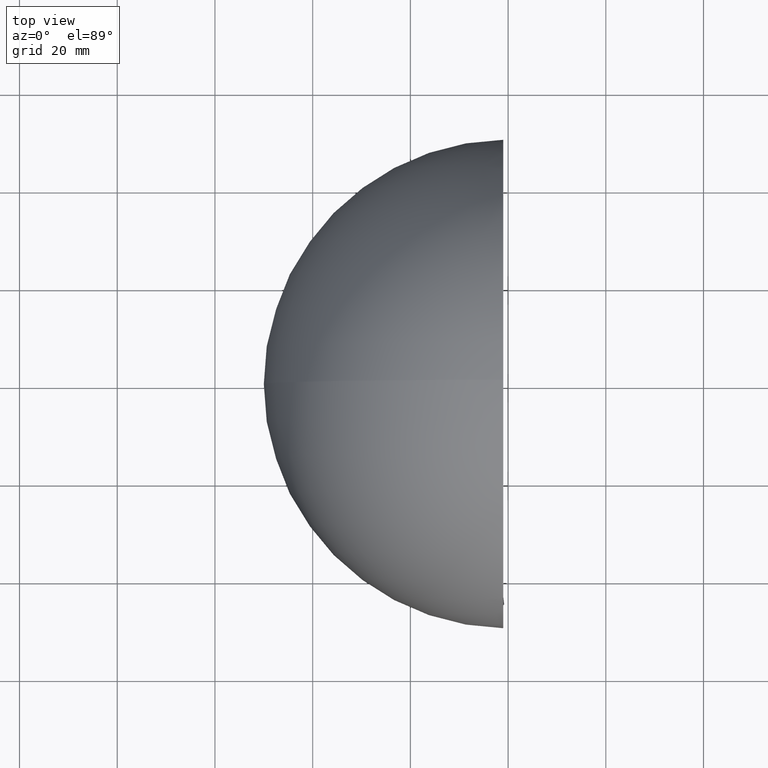
[diagram: clean part render]
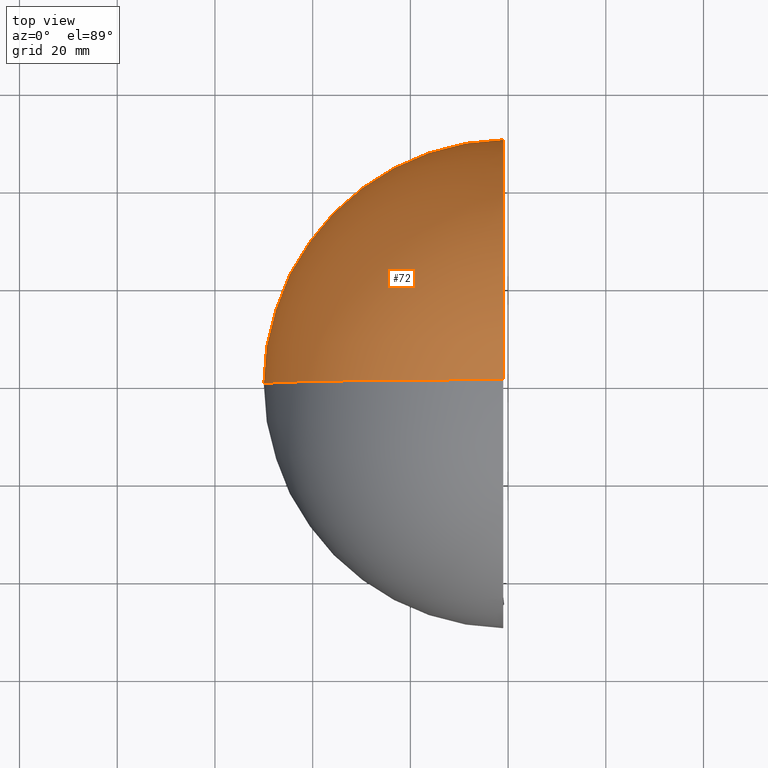
[diagram: same view with one face highlighted and labeled with its STEP entity id]
A machine part, top view. The second image highlights one B-rep face of the part: STEP entity #72.
In plain terms, the highlighted spherical surface has radius 50 mm.
Its self-contained STEP definition (entity closure, byte-faithful):
#5 = DIRECTION ( 'NONE',  ( 0.0000000000000000000, 1.000000000000000000, 0.0000000000000000000 ) ) ;
#9 = DIRECTION ( 'NONE',  ( 0.0000000000000000000, 0.0000000000000000000, 1.000000000000000000 ) ) ;
#31 = CIRCLE ( 'NONE', #57, 50.00000000000000000 ) ;
#32 = DIRECTION ( 'NONE',  ( 0.0000000000000000000, 0.0000000000000000000, 1.000000000000000000 ) ) ;
#39 = EDGE_CURVE ( 'NONE', #50, #74, #142, .T. ) ;
#40 = CARTESIAN_POINT ( 'NONE',  ( -0.9999999999999922300, 0.0000000000000000000, 0.0000000000000000000 ) ) ;
#42 = FACE_OUTER_BOUND ( 'NONE', #107, .T. ) ;
#47 = DIRECTION ( 'NONE',  ( 0.0000000000000000000, -1.224646799147353200E-016, -1.000000000000000000 ) ) ;
#48 = DIRECTION ( 'NONE',  ( 0.0000000000000000000, 0.0000000000000000000, -1.000000000000000000 ) ) ;
#49 = CARTESIAN_POINT ( 'NONE',  ( 0.0000000000000000000, 0.0000000000000000000, 0.0000000000000000000 ) ) ;
#50 = VERTEX_POINT ( 'NONE', #116 ) ;
#52 = AXIS2_PLACEMENT_3D ( 'NONE', #133, #5, #32 ) ;
#53 = ORIENTED_EDGE ( 'NONE', *, *, #106, .F. ) ;
#54 = AXIS2_PLACEMENT_3D ( 'NONE', #40, #127, #48 ) ;
#57 = AXIS2_PLACEMENT_3D ( 'NONE', #49, #137, #47 ) ;
#72 = ADVANCED_FACE ( 'NONE', ( #42 ), #162, .T. ) ;
#74 = VERTEX_POINT ( 'NONE', #169 ) ;
#75 = CARTESIAN_POINT ( 'NONE',  ( -50.00000000000000000, 0.0000000000000000000, 3.061616997868383000E-015 ) ) ;
#82 = VERTEX_POINT ( 'NONE', #75 ) ;
#88 = CIRCLE ( 'NONE', #52, 50.00000000000000000 ) ;
#106 = EDGE_CURVE ( 'NONE', #82, #50, #31, .T. ) ;
#107 = EDGE_LOOP ( 'NONE', ( #53, #119, #149 ) ) ;
#116 = CARTESIAN_POINT ( 'NONE',  ( -0.9999999999999922300, -6.122009226448439700E-015, -49.98999899979994400 ) ) ;
#119 = ORIENTED_EDGE ( 'NONE', *, *, #143, .T. ) ;
#125 = DIRECTION ( 'NONE',  ( 0.0000000000000000000, -1.000000000000000000, 0.0000000000000000000 ) ) ;
#127 = DIRECTION ( 'NONE',  ( 1.000000000000000000, -0.0000000000000000000, -0.0000000000000000000 ) ) ;
#133 = CARTESIAN_POINT ( 'NONE',  ( 0.0000000000000000000, 0.0000000000000000000, 0.0000000000000000000 ) ) ;
#137 = DIRECTION ( 'NONE',  ( 0.0000000000000000000, -1.000000000000000000, 1.224646799147353200E-016 ) ) ;
#142 = CIRCLE ( 'NONE', #54, 49.98999899979995100 ) ;
#143 = EDGE_CURVE ( 'NONE', #82, #74, #88, .T. ) ;
#149 = ORIENTED_EDGE ( 'NONE', *, *, #39, .F. ) ;
#162 = SPHERICAL_SURFACE ( 'NONE', #170, 50.00000000000000000 ) ;
#168 = CARTESIAN_POINT ( 'NONE',  ( 0.0000000000000000000, 0.0000000000000000000, 0.0000000000000000000 ) ) ;
#169 = CARTESIAN_POINT ( 'NONE',  ( -0.9999999999999922300, 0.0000000000000000000, 49.98999899979994400 ) ) ;
#170 = AXIS2_PLACEMENT_3D ( 'NONE', #168, #125, #9 ) ;